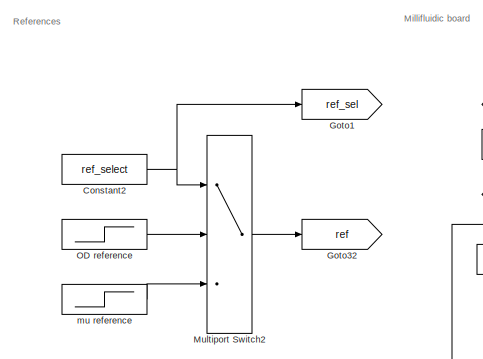
[diagram: root canvas - part 1/4, top left region]
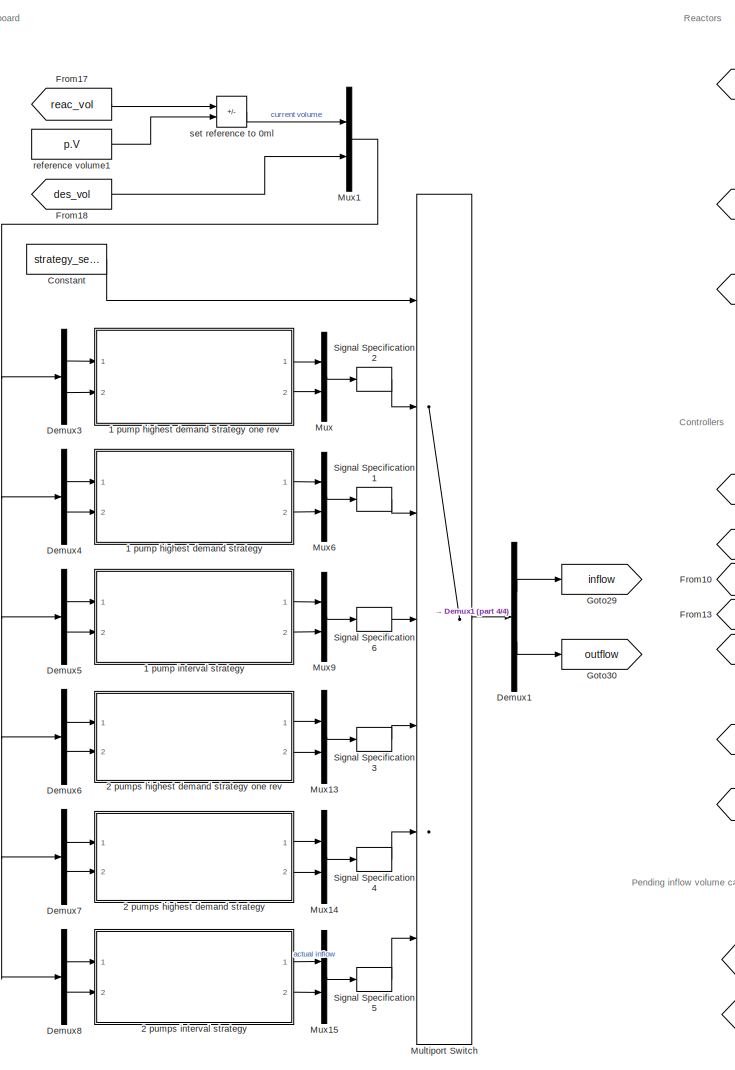
[diagram: root canvas - part 2/4, left side, full height]
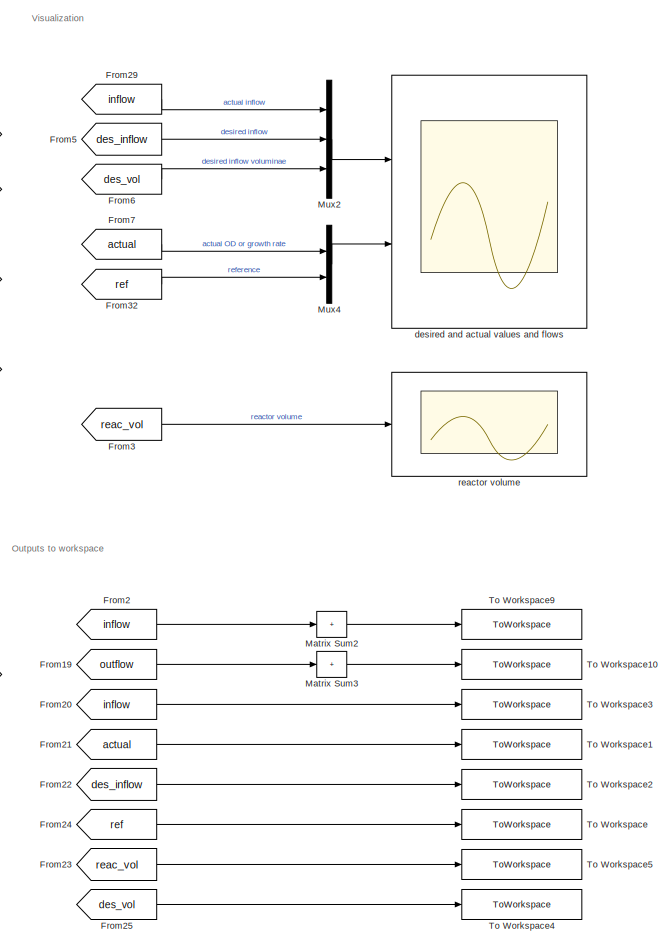
[diagram: root canvas - part 3/4, right side, full height]
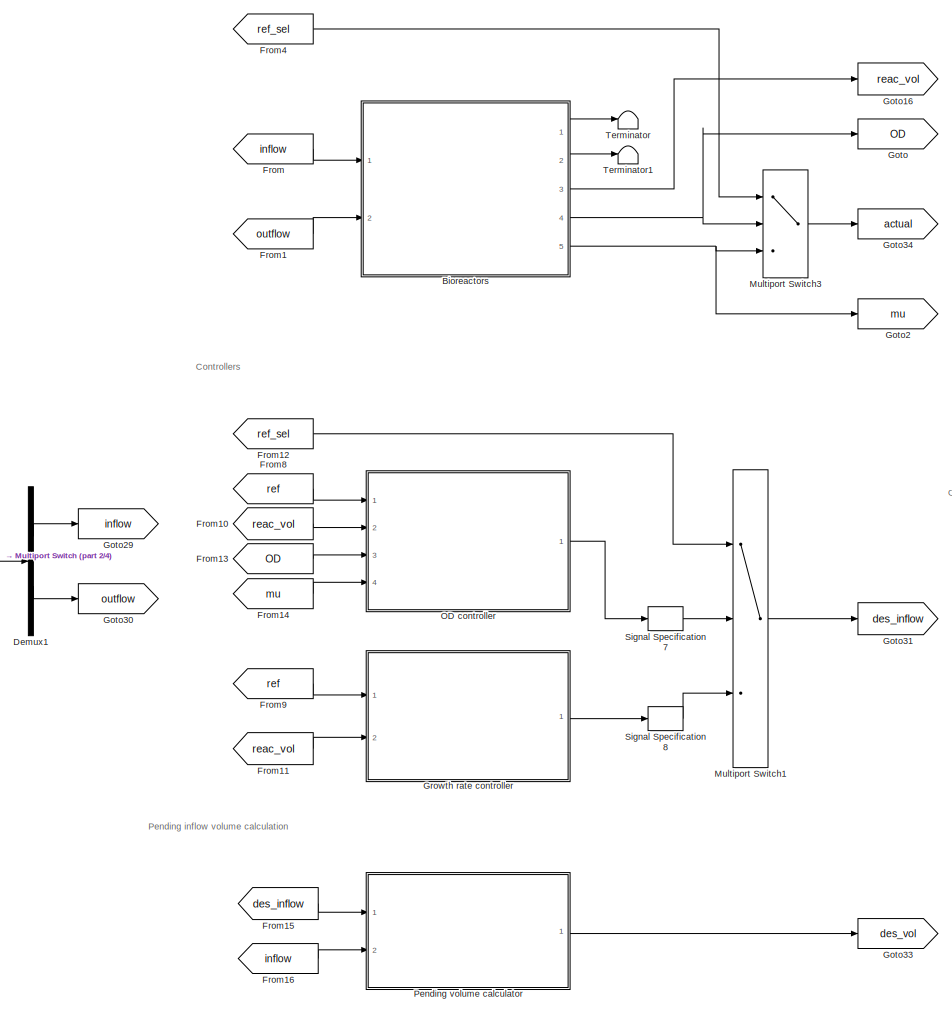
[diagram: root canvas - part 4/4, center side, full height]
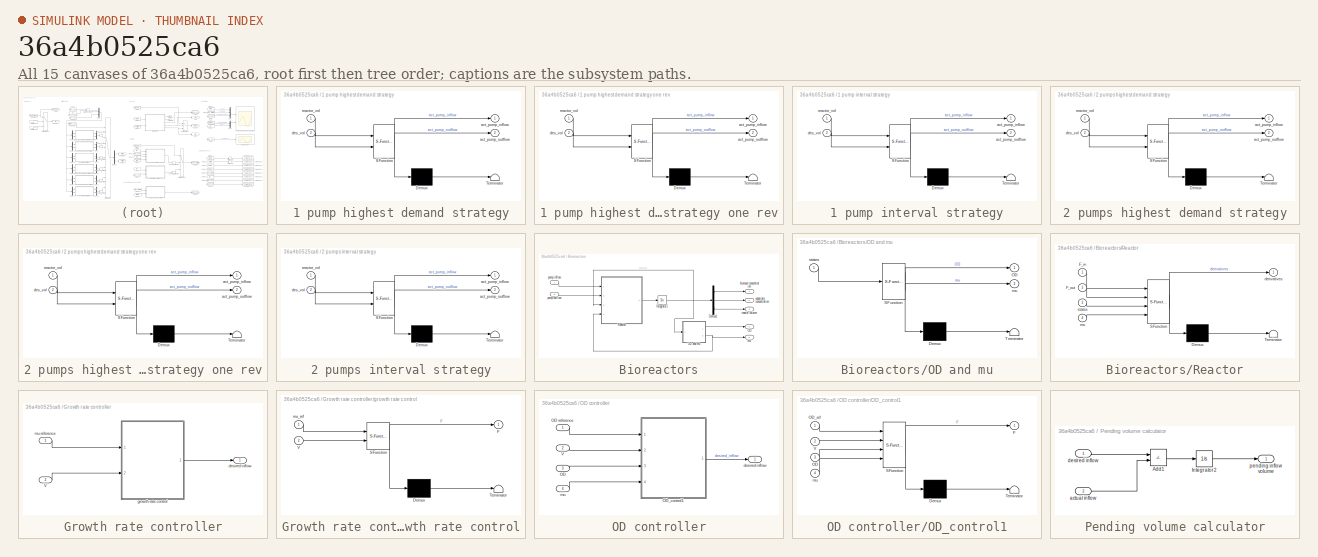
[diagram: thumbnail index - all 15 canvases of the model, root first then tree order]
MODEL slx_36a4b0525ca6
KIND model
CONFIG AbsTol = 1e-6
CONFIG EnableMultiTasking = off
CONFIG FixedStep = h
CONFIG MaxStep = 1
CONFIG MinStep = auto
CONFIG RelTol = 1e-3
CONFIG SampleTimeConstraint = Unconstrained
CONFIG SolverName = FixedStepAuto
CONFIG StartTime = 0.0
CONFIG StopTime = stoptime
BLOCK [SubSystem] 1 pump highest demand strategy
  ErrorFcn = Stateflow.Translate.translate
  PermitHierarchicalResolution = ExplicitOnly
  Ports = [2, 2]
  RequestExecContextInheritance = off
  SFBlockType = Chart
  TreatAsAtomicUnit = on
BLOCK [SubSystem] 1 pump highest demand strategy one rev
  ErrorFcn = Stateflow.Translate.translate
  PermitHierarchicalResolution = ExplicitOnly
  Ports = [2, 2]
  RequestExecContextInheritance = off
  SFBlockType = Chart
  TreatAsAtomicUnit = on
BLOCK [Demux] 1 pump highest demand strategy one rev/ Demux 
  Outputs = 1
  Ports = [1, 1]
BLOCK [S-Function] 1 pump highest demand strategy one rev/ SFunction 
  EnableBusSupport = on
  FunctionName = sf_sfun
  Parameters = p
  PortCounts = [2 3]
  Ports = [2, 3]
  SFcnIsStateOwnerBlock = off
  SFunctionDeploymentMode = off
  Tag = Stateflow S-Function 3
BLOCK [Terminator] 1 pump highest demand strategy one rev/ Terminator 
BLOCK [Outport] 1 pump highest demand strategy one rev/act_pump_inflow
BLOCK [Outport] 1 pump highest demand strategy one rev/act_pump_outflow
  Port = 2
BLOCK [Inport] 1 pump highest demand strategy one rev/des_vol
  Port = 2
BLOCK [Inport] 1 pump highest demand strategy one rev/reactor_vol
BLOCK [Demux] 1 pump highest demand strategy/ Demux 
  Outputs = 1
  Ports = [1, 1]
BLOCK [S-Function] 1 pump highest demand strategy/ SFunction 
  EnableBusSupport = on
  FunctionName = sf_sfun
  Parameters = p
  PortCounts = [2 3]
  Ports = [2, 3]
  SFcnIsStateOwnerBlock = off
  SFunctionDeploymentMode = off
  Tag = Stateflow S-Function 2
BLOCK [Terminator] 1 pump highest demand strategy/ Terminator 
BLOCK [Outport] 1 pump highest demand strategy/act_pump_inflow
BLOCK [Outport] 1 pump highest demand strategy/act_pump_outflow
  Port = 2
BLOCK [Inport] 1 pump highest demand strategy/des_vol
  Port = 2
BLOCK [Inport] 1 pump highest demand strategy/reactor_vol
BLOCK [SubSystem] 1 pump interval strategy
  ErrorFcn = Stateflow.Translate.translate
  PermitHierarchicalResolution = ExplicitOnly
  Ports = [2, 2]
  RequestExecContextInheritance = off
  SFBlockType = Chart
  TreatAsAtomicUnit = on
BLOCK [Demux] 1 pump interval strategy/ Demux 
  Outputs = 1
  Ports = [1, 1]
BLOCK [S-Function] 1 pump interval strategy/ SFunction 
  EnableBusSupport = on
  FunctionName = sf_sfun
  Parameters = p
  PortCounts = [2 3]
  Ports = [2, 3]
  SFcnIsStateOwnerBlock = off
  SFunctionDeploymentMode = off
  Tag = Stateflow S-Function 1
BLOCK [Terminator] 1 pump interval strategy/ Terminator 
BLOCK [Outport] 1 pump interval strategy/act_pump_inflow
BLOCK [Outport] 1 pump interval strategy/act_pump_outflow
  Port = 2
BLOCK [Inport] 1 pump interval strategy/des_vol
  Port = 2
BLOCK [Inport] 1 pump interval strategy/reactor_vol
BLOCK [SubSystem] 2 pumps highest demand strategy
  ErrorFcn = Stateflow.Translate.translate
  PermitHierarchicalResolution = ExplicitOnly
  Ports = [2, 2]
  RequestExecContextInheritance = off
  SFBlockType = Chart
  TreatAsAtomicUnit = on
BLOCK [SubSystem] 2 pumps highest demand strategy one rev
  ErrorFcn = Stateflow.Translate.translate
  PermitHierarchicalResolution = ExplicitOnly
  Ports = [2, 2]
  RequestExecContextInheritance = off
  SFBlockType = Chart
  TreatAsAtomicUnit = on
BLOCK [Demux] 2 pumps highest demand strategy one rev/ Demux 
  Outputs = 1
  Ports = [1, 1]
BLOCK [S-Function] 2 pumps highest demand strategy one rev/ SFunction 
  EnableBusSupport = on
  FunctionName = sf_sfun
  Parameters = p
  PortCounts = [2 3]
  Ports = [2, 3]
  SFcnIsStateOwnerBlock = off
  SFunctionDeploymentMode = off
  Tag = Stateflow S-Function 4
BLOCK [Terminator] 2 pumps highest demand strategy one rev/ Terminator 
BLOCK [Outport] 2 pumps highest demand strategy one rev/act_pump_inflow
BLOCK [Outport] 2 pumps highest demand strategy one rev/act_pump_outflow
  Port = 2
BLOCK [Inport] 2 pumps highest demand strategy one rev/des_vol
  Port = 2
BLOCK [Inport] 2 pumps highest demand strategy one rev/reactor_vol
BLOCK [Demux] 2 pumps highest demand strategy/ Demux 
  Outputs = 1
  Ports = [1, 1]
BLOCK [S-Function] 2 pumps highest demand strategy/ SFunction 
  EnableBusSupport = on
  FunctionName = sf_sfun
  Parameters = p
  PortCounts = [2 3]
  Ports = [2, 3]
  SFcnIsStateOwnerBlock = off
  SFunctionDeploymentMode = off
  Tag = Stateflow S-Function 5
BLOCK [Terminator] 2 pumps highest demand strategy/ Terminator 
BLOCK [Outport] 2 pumps highest demand strategy/act_pump_inflow
BLOCK [Outport] 2 pumps highest demand strategy/act_pump_outflow
  Port = 2
BLOCK [Inport] 2 pumps highest demand strategy/des_vol
  Port = 2
BLOCK [Inport] 2 pumps highest demand strategy/reactor_vol
BLOCK [SubSystem] 2 pumps interval strategy
  ErrorFcn = Stateflow.Translate.translate
  PermitHierarchicalResolution = ExplicitOnly
  Ports = [2, 2]
  RequestExecContextInheritance = off
  SFBlockType = Chart
  TreatAsAtomicUnit = on
BLOCK [Demux] 2 pumps interval strategy/ Demux 
  Outputs = 1
  Ports = [1, 1]
BLOCK [S-Function] 2 pumps interval strategy/ SFunction 
  EnableBusSupport = on
  FunctionName = sf_sfun
  Parameters = p
  PortCounts = [2 3]
  Ports = [2, 3]
  SFcnIsStateOwnerBlock = off
  SFunctionDeploymentMode = off
  Tag = Stateflow S-Function 6
BLOCK [Terminator] 2 pumps interval strategy/ Terminator 
BLOCK [Outport] 2 pumps interval strategy/act_pump_inflow
BLOCK [Outport] 2 pumps interval strategy/act_pump_outflow
  Port = 2
BLOCK [Inport] 2 pumps interval strategy/des_vol
  Port = 2
BLOCK [Inport] 2 pumps interval strategy/reactor_vol
BLOCK [SubSystem] Bioreactors
  Ports = [2, 5]
  RequestExecContextInheritance = off
BLOCK [Demux] Bioreactors/Demux1
  Outputs = 3
  Ports = [1, 3]
BLOCK [Integrator] Bioreactors/Integrator1
  InitialCondition = [p.init_x; p.init_s; p.init_v];
  Ports = [1, 1]
BLOCK [Outport] Bioreactors/OD
  Port = 4
BLOCK [SubSystem] Bioreactors/OD and mu
  ErrorFcn = Stateflow.Translate.translate
  PermitHierarchicalResolution = ExplicitOnly
  Ports = [1, 2]
  RequestExecContextInheritance = off
  SFBlockType = MATLAB Function
  TreatAsAtomicUnit = on
BLOCK [Demux] Bioreactors/OD and mu/ Demux 
  Outputs = 1
  Ports = [1, 1]
BLOCK [S-Function] Bioreactors/OD and mu/ SFunction 
  EnableBusSupport = on
  FunctionName = sf_sfun
  Parameters = p
  PortCounts = [1 3]
  Ports = [1, 3]
  SFcnIsStateOwnerBlock = off
  SFunctionDeploymentMode = off
  Tag = Stateflow S-Function 9
BLOCK [Terminator] Bioreactors/OD and mu/ Terminator 
BLOCK [Outport] Bioreactors/OD and mu/OD
BLOCK [Outport] Bioreactors/OD and mu/mu
  Port = 2
BLOCK [Inport] Bioreactors/OD and mu/states
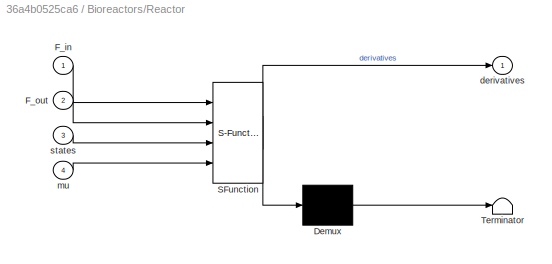
BLOCK [SubSystem] Bioreactors/Reactor
  ErrorFcn = Stateflow.Translate.translate
  PermitHierarchicalResolution = ExplicitOnly
  Ports = [4, 1]
  RequestExecContextInheritance = off
  SFBlockType = MATLAB Function
  TreatAsAtomicUnit = on
BLOCK [Demux] Bioreactors/Reactor/ Demux 
  Outputs = 1
  Ports = [1, 1]
BLOCK [S-Function] Bioreactors/Reactor/ SFunction 
  EnableBusSupport = on
  FunctionName = sf_sfun
  Parameters = p
  PortCounts = [4 2]
  Ports = [4, 2]
  SFcnIsStateOwnerBlock = off
  SFunctionDeploymentMode = off
  Tag = Stateflow S-Function 8
BLOCK [Terminator] Bioreactors/Reactor/ Terminator 
BLOCK [Inport] Bioreactors/Reactor/F_in
BLOCK [Inport] Bioreactors/Reactor/F_out
  Port = 2
BLOCK [Outport] Bioreactors/Reactor/derivatives
BLOCK [Inport] Bioreactors/Reactor/mu
  Port = 4
BLOCK [Inport] Bioreactors/Reactor/states
  Port = 3
BLOCK [Outport] Bioreactors/biomass concentration
BLOCK [Outport] Bioreactors/mu
  Port = 5
BLOCK [Inport] Bioreactors/pump inflow
BLOCK [Inport] Bioreactors/pump outflow
  Port = 2
BLOCK [Outport] Bioreactors/reactor volume
  Port = 3
BLOCK [Outport] Bioreactors/substrate concentration
  Port = 2
BLOCK [Constant] Constant
  Value = strategy_select
BLOCK [Constant] Constant2
  Value = ref_select
BLOCK [Demux] Demux1
  Outputs = 2
  Ports = [1, 2]
BLOCK [Demux] Demux3
  Outputs = 2
  Ports = [1, 2]
BLOCK [Demux] Demux4
  Outputs = 2
  Ports = [1, 2]
BLOCK [Demux] Demux5
  Outputs = 2
  Ports = [1, 2]
BLOCK [Demux] Demux6
  Outputs = 2
  Ports = [1, 2]
BLOCK [Demux] Demux7
  Outputs = 2
  Ports = [1, 2]
BLOCK [Demux] Demux8
  Outputs = 2
  Ports = [1, 2]
BLOCK [From] From
  GotoTag = inflow
BLOCK [From] From1
  GotoTag = outflow
BLOCK [From] From10
  GotoTag = reac_vol
BLOCK [From] From11
  GotoTag = reac_vol
BLOCK [From] From12
  GotoTag = ref_sel
BLOCK [From] From13
  GotoTag = OD
BLOCK [From] From14
  GotoTag = mu
BLOCK [From] From15
  GotoTag = des_inflow
BLOCK [From] From16
  GotoTag = inflow
BLOCK [From] From17
  GotoTag = reac_vol
BLOCK [From] From18
  GotoTag = des_vol
BLOCK [From] From19
  GotoTag = outflow
BLOCK [From] From2
  GotoTag = inflow
BLOCK [From] From20
  GotoTag = inflow
BLOCK [From] From21
  GotoTag = actual
BLOCK [From] From22
  GotoTag = des_inflow
BLOCK [From] From23
  GotoTag = reac_vol
BLOCK [From] From24
  GotoTag = ref
BLOCK [From] From25
  GotoTag = des_vol
BLOCK [From] From29
  GotoTag = inflow
BLOCK [From] From3
  GotoTag = reac_vol
BLOCK [From] From32
  GotoTag = ref
BLOCK [From] From4
  GotoTag = ref_sel
BLOCK [From] From5
  GotoTag = des_inflow
BLOCK [From] From6
  GotoTag = des_vol
BLOCK [From] From7
  GotoTag = actual
BLOCK [From] From8
  GotoTag = ref
BLOCK [From] From9
  GotoTag = ref
BLOCK [Goto] Goto
  GotoTag = OD
BLOCK [Goto] Goto1
  GotoTag = ref_sel
BLOCK [Goto] Goto16
  GotoTag = reac_vol
BLOCK [Goto] Goto2
  GotoTag = mu
BLOCK [Goto] Goto29
  GotoTag = inflow
BLOCK [Goto] Goto30
  GotoTag = outflow
BLOCK [Goto] Goto31
  GotoTag = des_inflow
BLOCK [Goto] Goto32
  GotoTag = ref
BLOCK [Goto] Goto33
  GotoTag = des_vol
BLOCK [Goto] Goto34
  GotoTag = actual
BLOCK [SubSystem] Growth rate controller
  Ports = [2, 1]
  RequestExecContextInheritance = off
BLOCK [Inport] Growth rate controller/V
  Port = 2
BLOCK [Outport] Growth rate controller/desired inflow
BLOCK [SubSystem] Growth rate controller/growth rate control
  ErrorFcn = Stateflow.Translate.translate
  PermitHierarchicalResolution = ExplicitOnly
  Ports = [2, 1]
  RequestExecContextInheritance = off
  SFBlockType = MATLAB Function
  TreatAsAtomicUnit = on
BLOCK [Demux] Growth rate controller/growth rate control/ Demux 
  Outputs = 1
  Ports = [1, 1]
BLOCK [S-Function] Growth rate controller/growth rate control/ SFunction 
  EnableBusSupport = on
  FunctionName = sf_sfun
  PortCounts = [2 2]
  Ports = [2, 2]
  SFcnIsStateOwnerBlock = off
  SFunctionDeploymentMode = off
  Tag = Stateflow S-Function 10
BLOCK [Terminator] Growth rate controller/growth rate control/ Terminator 
BLOCK [Outport] Growth rate controller/growth rate control/F
BLOCK [Inport] Growth rate controller/growth rate control/V
  Port = 2
BLOCK [Inport] Growth rate controller/growth rate control/mu_ref
BLOCK [Inport] Growth rate controller/mu reference
BLOCK [Sum] Matrix Sum2
  IconShape = rectangular
  Inputs = +
  Ports = [1, 1]
BLOCK [Sum] Matrix Sum3
  IconShape = rectangular
  Inputs = +
  Ports = [1, 1]
BLOCK [MultiPortSwitch] Multiport Switch
  InputSameDT = off
  Inputs = 6
  Ports = [7, 1]
  SaturateOnIntegerOverflow = off
BLOCK [MultiPortSwitch] Multiport Switch1
  InputSameDT = off
  Inputs = 2
  Ports = [3, 1]
  SaturateOnIntegerOverflow = off
BLOCK [MultiPortSwitch] Multiport Switch2
  InputSameDT = off
  Inputs = 2
  Ports = [3, 1]
  SaturateOnIntegerOverflow = off
BLOCK [MultiPortSwitch] Multiport Switch3
  InputSameDT = off
  Inputs = 2
  Ports = [3, 1]
  SaturateOnIntegerOverflow = off
BLOCK [Mux] Mux
  DisplayOption = bar
  Inputs = 2
  Ports = [2, 1]
BLOCK [Mux] Mux1
  DisplayOption = bar
  Inputs = 2
  Ports = [2, 1]
BLOCK [Mux] Mux13
  DisplayOption = bar
  Inputs = 2
  Ports = [2, 1]
BLOCK [Mux] Mux14
  DisplayOption = bar
  Inputs = 2
  Ports = [2, 1]
BLOCK [Mux] Mux15
  DisplayOption = bar
  Inputs = 2
  Ports = [2, 1]
BLOCK [Mux] Mux2
  DisplayOption = bar
  Inputs = 3
  Ports = [3, 1]
BLOCK [Mux] Mux4
  DisplayOption = bar
  Inputs = 2
  Ports = [2, 1]
BLOCK [Mux] Mux6
  DisplayOption = bar
  Inputs = 2
  Ports = [2, 1]
BLOCK [Mux] Mux9
  DisplayOption = bar
  Inputs = 2
  Ports = [2, 1]
BLOCK [SubSystem] OD controller
  Ports = [4, 1]
  RequestExecContextInheritance = off
BLOCK [Inport] OD controller/OD
  Port = 3
BLOCK [Inport] OD controller/OD reference
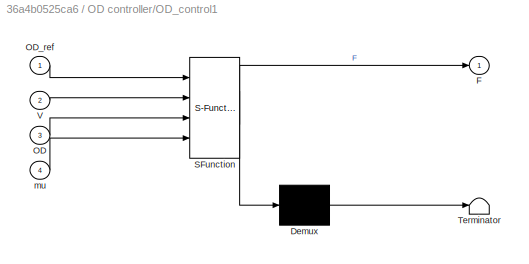
BLOCK [SubSystem] OD controller/OD_control1
  ErrorFcn = Stateflow.Translate.translate
  PermitHierarchicalResolution = ExplicitOnly
  Ports = [4, 1]
  RequestExecContextInheritance = off
  SFBlockType = MATLAB Function
  TreatAsAtomicUnit = on
BLOCK [Demux] OD controller/OD_control1/ Demux 
  Outputs = 1
  Ports = [1, 1]
BLOCK [S-Function] OD controller/OD_control1/ SFunction 
  EnableBusSupport = on
  FunctionName = sf_sfun
  PortCounts = [4 2]
  Ports = [4, 2]
  SFcnIsStateOwnerBlock = off
  SFunctionDeploymentMode = off
  Tag = Stateflow S-Function 7
BLOCK [Terminator] OD controller/OD_control1/ Terminator 
BLOCK [Outport] OD controller/OD_control1/F
BLOCK [Inport] OD controller/OD_control1/OD
  Port = 3
BLOCK [Inport] OD controller/OD_control1/OD_ref
BLOCK [Inport] OD controller/OD_control1/V
  Port = 2
BLOCK [Inport] OD controller/OD_control1/mu
  Port = 4
BLOCK [Inport] OD controller/V
  Port = 2
BLOCK [Outport] OD controller/desired inflow
BLOCK [Inport] OD controller/mu
  Port = 4
BLOCK [Step] OD reference
  After = p.OD.final_val
  Before = p.OD.init_val
  SampleTime = 0
  Time = p.OD.step_time
BLOCK [SubSystem] Pending volume calculator
  Ports = [2, 1]
  RequestExecContextInheritance = off
BLOCK [Sum] Pending volume calculator/Add1
  IconShape = rectangular
  Inputs = +-
  Ports = [2, 1]
BLOCK [Integrator] Pending volume calculator/Integrator2
  InitialCondition = zeros(p.num_reac,1)
  Ports = [1, 1]
BLOCK [Inport] Pending volume calculator/actual inflow
  Port = 2
BLOCK [Inport] Pending volume calculator/desired inflow
BLOCK [Outport] Pending volume calculator/pending inflow volume
BLOCK [SignalSpecification] Signal Specification1
  Dimensions = 2*p.num_reac
BLOCK [SignalSpecification] Signal Specification2
  Dimensions = 2*p.num_reac
BLOCK [SignalSpecification] Signal Specification3
  Dimensions = 2*p.num_reac
BLOCK [SignalSpecification] Signal Specification4
  Dimensions = 2*p.num_reac
BLOCK [SignalSpecification] Signal Specification5
  Dimensions = 2*p.num_reac
BLOCK [SignalSpecification] Signal Specification6
  Dimensions = 2*p.num_reac
BLOCK [SignalSpecification] Signal Specification7
  Dimensions = p.num_reac
BLOCK [SignalSpecification] Signal Specification8
  Dimensions = p.num_reac
BLOCK [Terminator] Terminator
BLOCK [Terminator] Terminator1
BLOCK [ToWorkspace] To Workspace
  FixptAsFi = on
  MaxDataPoints = inf
  Ports = [1]
  SampleTime = -1
  VariableName = reference
BLOCK [ToWorkspace] To Workspace1
  FixptAsFi = on
  MaxDataPoints = inf
  Ports = [1]
  SampleTime = -1
  VariableName = actual
BLOCK [ToWorkspace] To Workspace10
  FixptAsFi = on
  MaxDataPoints = inf
  Ports = [1]
  SampleTime = -1
  Save2DSignal = 2-D array (concatenate along first dimension)
  VariableName = pump_outflow
BLOCK [ToWorkspace] To Workspace2
  FixptAsFi = on
  MaxDataPoints = inf
  Ports = [1]
  SampleTime = -1
  VariableName = desired_flow
BLOCK [ToWorkspace] To Workspace3
  FixptAsFi = on
  MaxDataPoints = inf
  Ports = [1]
  SampleTime = -1
  Save2DSignal = 2-D array (concatenate along first dimension)
  VariableName = actual_inflow
BLOCK [ToWorkspace] To Workspace4
  FixptAsFi = on
  MaxDataPoints = inf
  Ports = [1]
  SampleTime = -1
  VariableName = des_vol
BLOCK [ToWorkspace] To Workspace5
  FixptAsFi = on
  MaxDataPoints = inf
  Ports = [1]
  SampleTime = -1
  VariableName = reac_vol
BLOCK [ToWorkspace] To Workspace9
  FixptAsFi = on
  MaxDataPoints = inf
  Ports = [1]
  SampleTime = -1
  Save2DSignal = 2-D array (concatenate along first dimension)
  VariableName = pump_inflow
BLOCK [Scope] desired and actual values and flows
  Floating = off
  NumInputPorts = 2
  Ports = [2]
  ScopeSpecificationString = Simulink.scopes.TimeScopeBlockCfg('CurrentConfiguration', extmgr.ConfigurationSet(extmgr.Configuration('Core','General UI',true),extmgr.Configuration('Core','Source UI',true),extmgr.Configuration('Sources','WiredSimulink',true,'DataLoggingVariableName','ScopeData1'),extmgr.Configuration('Visuals','Time Domain',true,'SerializedDisplays',{struct('MinYLimReal','-4.5','MaxYLimReal','40.5','YLabelReal'...<+2594ch>
BLOCK [Step] mu reference
  After = p.growth_rate.final_val
  Before = p.growth_rate.init_val
  SampleTime = 0
  Time = p.growth_rate.step_time
BLOCK [Scope] reactor volume
  Floating = off
  NumInputPorts = 1
  Ports = [1]
  ScopeSpecificationString = Simulink.scopes.TimeScopeBlockCfg('CurrentConfiguration', extmgr.ConfigurationSet(extmgr.Configuration('Core','General UI',true),extmgr.Configuration('Core','Source UI',true),extmgr.Configuration('Sources','WiredSimulink',true),extmgr.Configuration('Visuals','Time Domain',true,'SerializedDisplays',{struct('MinYLimReal','14.61345','MaxYLimReal','18.44295','YLabelReal','','MinYLimMag','14.61345','Ma...<+1512ch>
BLOCK [Constant] reference volume1
  Value = p.V
BLOCK [Sum] set reference to 0ml
  IconShape = rectangular
  Inputs = +-
  Ports = [2, 1]
ANNOTATION (root): Controllers
ANNOTATION (root): Millifluidic board
ANNOTATION (root): Outputs to workspace
ANNOTATION (root): Pending inflow volume calculation
ANNOTATION (root): Reactors
ANNOTATION (root): References
ANNOTATION (root): Visualization
LINE 1 pump highest demand strategy one rev:1 -> Mux:1
LINE 1 pump highest demand strategy one rev:2 -> Mux:2
LINE 1 pump highest demand strategy:1 -> Mux6:1
LINE 1 pump highest demand strategy:2 -> Mux6:2
LINE 1 pump interval strategy:1 -> Mux9:1
LINE 1 pump interval strategy:2 -> Mux9:2
LINE 2 pumps highest demand strategy one rev:1 -> Mux13:1
LINE 2 pumps highest demand strategy one rev:2 -> Mux13:2
LINE 2 pumps highest demand strategy:1 -> Mux14:1
LINE 2 pumps highest demand strategy:2 -> Mux14:2
LINE 2 pumps interval strategy:1 -> Mux15:1
LINE 2 pumps interval strategy:2 -> Mux15:2
LINE Bioreactors/Demux1:1 -> Bioreactors/biomass concentration:1
LINE Bioreactors/Demux1:2 -> Bioreactors/substrate concentration:1
LINE Bioreactors/Demux1:3 -> Bioreactors/reactor volume:1
NET Bioreactors/Integrator1:1 -> Bioreactors/Demux1:1, Bioreactors/OD and mu:1, Bioreactors/Reactor:3
LINE Bioreactors/OD and mu:1 -> Bioreactors/OD:1
NET Bioreactors/OD and mu:2 -> Bioreactors/Reactor:4, Bioreactors/mu:1
LINE Bioreactors/Reactor:1 -> Bioreactors/Integrator1:1
LINE Bioreactors/pump inflow:1 -> Bioreactors/Reactor:1
LINE Bioreactors/pump outflow:1 -> Bioreactors/Reactor:2
LINE Bioreactors:1 -> Terminator:1
LINE Bioreactors:2 -> Terminator1:1
LINE Bioreactors:3 -> Goto16:1
NET Bioreactors:4 -> Goto:1, Multiport Switch3:2
NET Bioreactors:5 -> Goto2:1, Multiport Switch3:3
NET Constant2:1 -> Goto1:1, Multiport Switch2:1
LINE Constant:1 -> Multiport Switch:1
LINE Demux1:1 -> Goto29:1
LINE Demux1:2 -> Goto30:1
LINE Demux3:1 -> 1 pump highest demand strategy one rev:1
LINE Demux3:2 -> 1 pump highest demand strategy one rev:2
LINE Demux4:1 -> 1 pump highest demand strategy:1
LINE Demux4:2 -> 1 pump highest demand strategy:2
LINE Demux5:1 -> 1 pump interval strategy:1
LINE Demux5:2 -> 1 pump interval strategy:2
LINE Demux6:1 -> 2 pumps highest demand strategy one rev:1
LINE Demux6:2 -> 2 pumps highest demand strategy one rev:2
LINE Demux7:1 -> 2 pumps highest demand strategy:1
LINE Demux7:2 -> 2 pumps highest demand strategy:2
LINE Demux8:1 -> 2 pumps interval strategy:1
LINE Demux8:2 -> 2 pumps interval strategy:2
LINE From10:1 -> OD controller:2
LINE From11:1 -> Growth rate controller:2
LINE From12:1 -> Multiport Switch1:1
LINE From13:1 -> OD controller:3
LINE From14:1 -> OD controller:4
LINE From15:1 -> Pending volume calculator:1
LINE From16:1 -> Pending volume calculator:2
LINE From17:1 -> set reference to 0ml:1
LINE From18:1 -> Mux1:2
LINE From19:1 -> Matrix Sum3:1
LINE From1:1 -> Bioreactors:2
LINE From20:1 -> To Workspace3:1
LINE From21:1 -> To Workspace1:1
LINE From22:1 -> To Workspace2:1
LINE From23:1 -> To Workspace5:1
LINE From24:1 -> To Workspace:1
LINE From25:1 -> To Workspace4:1
LINE From29:1 -> Mux2:1
LINE From2:1 -> Matrix Sum2:1
LINE From32:1 -> Mux4:2
LINE From3:1 -> reactor volume:1
LINE From4:1 -> Multiport Switch3:1
LINE From5:1 -> Mux2:2
LINE From6:1 -> Mux2:3
LINE From7:1 -> Mux4:1
LINE From8:1 -> OD controller:1
LINE From9:1 -> Growth rate controller:1
LINE From:1 -> Bioreactors:1
LINE Growth rate controller/V:1 -> Growth rate controller/growth rate control:2
LINE Growth rate controller/growth rate control:1 -> Growth rate controller/desired inflow:1
LINE Growth rate controller/mu reference:1 -> Growth rate controller/growth rate control:1
LINE Growth rate controller:1 -> Signal Specification8:1
LINE Matrix Sum2:1 -> To Workspace9:1
LINE Matrix Sum3:1 -> To Workspace10:1
LINE Multiport Switch1:1 -> Goto31:1
LINE Multiport Switch2:1 -> Goto32:1
LINE Multiport Switch3:1 -> Goto34:1
LINE Multiport Switch:1 -> Demux1:1
LINE Mux13:1 -> Signal Specification3:1
LINE Mux14:1 -> Signal Specification4:1
LINE Mux15:1 -> Signal Specification5:1
NET Mux1:1 -> Demux3:1, Demux4:1, Demux5:1, Demux6:1, Demux7:1, Demux8:1
LINE Mux2:1 -> desired and actual values and flows:1
LINE Mux4:1 -> desired and actual values and flows:2
LINE Mux6:1 -> Signal Specification1:1
LINE Mux9:1 -> Signal Specification6:1
LINE Mux:1 -> Signal Specification2:1
LINE OD controller/OD reference:1 -> OD controller/OD_control1:1
LINE OD controller/OD:1 -> OD controller/OD_control1:3
LINE OD controller/OD_control1:1 -> OD controller/desired inflow:1
LINE OD controller/V:1 -> OD controller/OD_control1:2
LINE OD controller/mu:1 -> OD controller/OD_control1:4
LINE OD controller:1 -> Signal Specification7:1
LINE OD reference:1 -> Multiport Switch2:2
LINE Pending volume calculator/Add1:1 -> Pending volume calculator/Integrator2:1
LINE Pending volume calculator/Integrator2:1 -> Pending volume calculator/pending inflow volume:1
LINE Pending volume calculator/actual inflow:1 -> Pending volume calculator/Add1:2
LINE Pending volume calculator/desired inflow:1 -> Pending volume calculator/Add1:1
LINE Pending volume calculator:1 -> Goto33:1
LINE Signal Specification1:1 -> Multiport Switch:3
LINE Signal Specification2:1 -> Multiport Switch:2
LINE Signal Specification3:1 -> Multiport Switch:5
LINE Signal Specification4:1 -> Multiport Switch:6
LINE Signal Specification5:1 -> Multiport Switch:7
LINE Signal Specification6:1 -> Multiport Switch:4
LINE Signal Specification7:1 -> Multiport Switch1:2
LINE Signal Specification8:1 -> Multiport Switch1:3
LINE mu reference:1 -> Multiport Switch2:3
LINE reference volume1:1 -> set reference to 0ml:2
LINE set reference to 0ml:1 -> Mux1:1
note: NET lines group one-source signal fan-out (src -> all destinations, sorted); 1:1 wires keep LINE
CHART 1 pump interval strategy states=18 transitions=27
  STATE_LABEL 'procedures'
  STATE_LABEL 'normal'
  STATE_LABEL 'sampling\nentry: sampling_req=true;'
  STATE_LABEL 'after(p.sampling_int, sec)'
  STATE_LABEL 'sampling_done'
  STATE_LABEL 'normal'
  STATE_LABEL 'sampling\nentry: sampling_req=true;'
  STATE_LABEL 'counter'
  STATE_LABEL 'init_counter\nentry: reac_ind = 1;'
  STATE_LABEL 'increase_counter\nentry: reac_ind = reac_ind+1;'
  STATE_LABEL 'cycle_over'
  STATE_LABEL '% loop_counter'
  STATE_LABEL 'after(p.interval/p.num_reac,sec)'
  STATE_LABEL '[reac_ind<p.num_reac]'
  STATE_LABEL 'after(p.interval/p.num_reac,sec)'
  STATE_LABEL 'next_cycle'
  STATE_LABEL 'init_counter\nentry: reac_ind = 1;'
  STATE_LABEL 'increase_counter\nentry: reac_ind = reac_ind+1;'
  STATE_LABEL 'cycle_over'
  STATE_LABEL 'feeding_wasting_sampling'
  STATE_LABEL 'inflow'
  STATE_LABEL 'inflow_act\nentry: vol_pump_in=floor(des_vol(reac_ind)/...\n     p.pump_res)*p.pump_res;\n act_pump_inflow(reac_ind)=p.max_pump_flow;'
  STATE_LABEL 'inflow_inact\nentry: act_pump_inflow(:)=0;'
  STATE_LABEL '[vol_pump_in<=0]'
  STATE_LABEL 'after(vol_pump_in/p.max_pump_flow,sec)'
  STATE_LABEL 'enter(counter.increase_counter)'
  STATE_LABEL 'after(p.interval/p.num_reac-1e-3,sec)'
  STATE_LABEL 'outflow_waste'
  STATE_LABEL 'outflow_act\nentry: vol_pump_out=reactor_vol(reac_ind);\n act_pump_outflow(reac_ind)=p.max_pump_flow;'
  STATE_LABEL 'outflow_inact\nentry: act_pump_outflow(:)=0;'
  STATE_LABEL '[vol_pump_out<=0]'
  STATE_LABEL 'after(vol_pump_out/p.max_pump_flow,sec)'
  STATE_LABEL 'enter(counter.increase_counter)'
  STATE_LABEL 'after(p.interval/p.num_reac-1e-3,sec)'
  STATE_LABEL 'cleaning_procedure'
  STATE_LABEL 'outflow_sampling'
  STATE_LABEL 'outflow_act\nentry: vol_pump_out=p.pump_res;\n act_pump_outflow(reac_ind)=p.max_pump_flow;'
  STATE_LABEL 'outflow_inact\nentry: act_pump_outflow(:)=0;'
  STATE_LABEL 'after(vol_pump_out/p.max_pump_flow,sec)'
  STATE_LABEL 'enter(counter.increase_counter)'
CHART 1 pump highest demand strategy states=15 transitions=18
  STATE_LABEL 'procedures'
  STATE_LABEL 'normal'
  STATE_LABEL 'sampling\nentry: sampling_req=true;'
  STATE_LABEL 'after(p.sampling_int, sec)'
  STATE_LABEL 'sampling_done'
  STATE_LABEL 'normal'
  STATE_LABEL 'sampling\nentry: sampling_req=true;'
  STATE_LABEL 'feeding_wasting_sampling'
  STATE_LABEL 'feeding'
  STATE_LABEL 'inflow'
  STATE_LABEL 'inflow_act\nentry: act_pump_inflow(reac_ind)=p.max_pump_flow;\n vol_pump_in = floor(vol_pump_in/p.pump_res)*p.pump_res;'
  STATE_LABEL 'inflow_inact\nentry: act_pump_inflow(:)=0;\n [vol_pump_in, reac_ind] = max(des_vol);\nduring: [vol_pump_in, reac_ind] = max(des_vol);'
  STATE_LABEL 'after(vol_pump_in/p.max_pump_flow,sec)'
  STATE_LABEL '[vol_pump_in<=0]'
  STATE_LABEL '[vol_pump_in>=p.pump_res]'
  STATE_LABEL 'outflow_waste'
  STATE_LABEL 'outflow_act\nentry: act_pump_outflow(reac_ind)=...\n     p.max_pump_flow;\n vol_pump_out = reactor_vol(reac_ind);\n % vol_pump_out = floor(reactor_vol(reac_ind)/...\n % p.pump_res)*p.pump_res;'
  STATE_LABEL 'outflow_inact\nentry: act_pump_outflow(:)=0;\n'
  STATE_LABEL '[vol_pump_out<=0]'
  STATE_LABEL 'after(vol_pump_out/p.max_pump_flow,sec)'
  STATE_LABEL '{reac_ind = reac_ind+1;}'
  STATE_LABEL 'cleaning_procedure'
  STATE_LABEL 'outflow_sampling'
  STATE_LABEL 'outflow_act\nentry: vol_pump_out=p.pump_res;\n act_pump_outflow(reac_ind)=p.max_pump_flow;'
  STATE_LABEL 'outflow_inact\nentry: act_pump_outflow(:)=0;'
  STATE_LABEL 'after(vol_pump_out/p.max_pump_flow,sec)'
  STATE_LABEL '{reac_ind=reac_ind+1;}'
  STATE_LABEL '[in(procedures.normal)]'
  STATE_LABEL '[sum(reactor_vol>p.waste_threshold)>0]{reac_ind=1;}'
  STATE_LABEL 'after(p.clean_time,sec)'
  STATE_LABEL '[in(procedures.sampling)]{reac_ind=1;}'
  STATE_LABEL '[reac_ind==p.num_reac]{send(sampling_done,procedures)}'
  STATE_LABEL '[reac_ind == p.num_reac]'
  STATE_LABEL 'feeding'
  STATE_LABEL 'inflow'
  STATE_LABEL 'inflow_act\nentry: act_pump_inflow(reac_ind)=p.max_pump_flow;\n vol_pump_in = floor(vol_pump_in/p.pump_res)*p.pump_res;'
  STATE_LABEL 'inflow_inact\nentry: act_pump_inflow(:)=0;\n [vol_pump_in, reac_ind] = max(des_vol);\nduring: [vol_pump_in, reac_ind] = max(des_vol);'
  STATE_LABEL 'after(vol_pump_in/p.max_pump_flow,sec)'
  STATE_LABEL '[vol_pump_in<=0]'
  STATE_LABEL '[vol_pump_in>=p.pump_res]'
CHART 1 pump highest demand strategy one rev states=15 transitions=18
  STATE_LABEL 'procedures'
  STATE_LABEL 'normal'
  STATE_LABEL 'sampling\nentry: sampling_req=true;'
  STATE_LABEL 'after(p.sampling_int, sec)'
  STATE_LABEL 'sampling_done'
  STATE_LABEL 'normal'
  STATE_LABEL 'sampling\nentry: sampling_req=true;'
  STATE_LABEL 'feeding_wasting_sampling'
  STATE_LABEL 'feeding'
  STATE_LABEL 'inflow'
  STATE_LABEL 'inflow_act\nentry: act_pump_inflow(reac_ind)=p.max_pump_flow;'
  STATE_LABEL 'inflow_inact\nentry: act_pump_inflow(:)=0;\n [vol_pump_in, reac_ind] = max(des_vol);\nduring: [vol_pump_in, reac_ind] = max(des_vol);'
  STATE_LABEL 'after(p.pump_res/p.max_pump_flow,sec)'
  STATE_LABEL '[vol_pump_in<=0]'
  STATE_LABEL '[vol_pump_in>=p.pump_res]'
  STATE_LABEL 'outflow_waste'
  STATE_LABEL 'outflow_act\nentry: act_pump_outflow(reac_ind)=...\n     p.max_pump_flow;\n vol_pump_out = reactor_vol(reac_ind);\n % vol_pump_out = floor(reactor_vol(reac_ind)/...\n % p.pump_res)*p.pump_res;'
  STATE_LABEL 'outflow_inact\nentry: act_pump_outflow(:)=0;\n'
  STATE_LABEL '[vol_pump_out<=0]'
  STATE_LABEL 'after(vol_pump_out/p.max_pump_flow,sec)'
  STATE_LABEL '{reac_ind = reac_ind+1;}'
  STATE_LABEL 'cleaning_procedure'
  STATE_LABEL 'outflow_sampling'
  STATE_LABEL 'outflow_act\nentry: vol_pump_out=p.pump_res;\n act_pump_outflow(reac_ind)=p.max_pump_flow;'
  STATE_LABEL 'outflow_inact\nentry: act_pump_outflow(:)=0;'
  STATE_LABEL 'after(vol_pump_out/p.max_pump_flow,sec)'
  STATE_LABEL '{reac_ind=reac_ind+1;}'
  STATE_LABEL '[in(procedures.normal)]'
  STATE_LABEL '[sum(reactor_vol>p.waste_threshold)>0]{reac_ind=1;}'
  STATE_LABEL 'after(p.clean_time,sec)'
  STATE_LABEL '[in(procedures.sampling)]{reac_ind=1;}'
  STATE_LABEL '[reac_ind==p.num_reac]{send(sampling_done,procedures)}'
  STATE_LABEL '[reac_ind == p.num_reac]'
  STATE_LABEL 'feeding'
  STATE_LABEL 'inflow'
  STATE_LABEL 'inflow_act\nentry: act_pump_inflow(reac_ind)=p.max_pump_flow;'
  STATE_LABEL 'inflow_inact\nentry: act_pump_inflow(:)=0;\n [vol_pump_in, reac_ind] = max(des_vol);\nduring: [vol_pump_in, reac_ind] = max(des_vol);'
  STATE_LABEL 'after(p.pump_res/p.max_pump_flow,sec)'
  STATE_LABEL '[vol_pump_in<=0]'
  STATE_LABEL '[vol_pump_in>=p.pump_res]'
CHART 2 pumps highest demand strategy one rev states=15 transitions=17
  STATE_LABEL 'procedures'
  STATE_LABEL 'normal'
  STATE_LABEL 'sampling\nentry: sampling_req=true;'
  STATE_LABEL 'after(p.sampling_int, sec)'
  STATE_LABEL 'sampling_done'
  STATE_LABEL 'normal'
  STATE_LABEL 'sampling\nentry: sampling_req=true;'
  STATE_LABEL 'feeding'
  STATE_LABEL 'inflow'
  STATE_LABEL 'inflow_act\nentry: act_pump_inflow(reac_ind_inflow)=...\n     p.max_pump_flow;'
  STATE_LABEL 'inflow_inact\nentry: act_pump_inflow(:)=0;\n [vol_pump_in, reac_ind_inflow] = max(des_vol);\nduring: [vol_pump_in, reac_ind_inflow] = max(des_vol);'
  STATE_LABEL 'after(p.pump_res/p.max_pump_flow,sec)'
  STATE_LABEL '[vol_pump_in<=0]'
  STATE_LABEL '[vol_pump_in>=p.pump_res]'
  STATE_LABEL 'inflow'
  STATE_LABEL 'inflow_act\nentry: act_pump_inflow(reac_ind_inflow)=...\n     p.max_pump_flow;'
  STATE_LABEL 'inflow_inact\nentry: act_pump_inflow(:)=0;\n [vol_pump_in, reac_ind_inflow] = max(des_vol);\nduring: [vol_pump_in, reac_ind_inflow] = max(des_vol);'
  STATE_LABEL 'after(p.pump_res/p.max_pump_flow,sec)'
  STATE_LABEL '[vol_pump_in<=0]'
  STATE_LABEL '[vol_pump_in>=p.pump_res]'
  STATE_LABEL 'inflow_act\nentry: act_pump_inflow(reac_ind_inflow)=...\n     p.max_pump_flow;'
  STATE_LABEL 'inflow_inact\nentry: act_pump_inflow(:)=0;\n [vol_pump_in, reac_ind_inflow] = max(des_vol);\nduring: [vol_pump_in, reac_ind_inflow] = max(des_vol);'
  STATE_LABEL 'wasting_sampling'
  STATE_LABEL 'outflow_waste'
  STATE_LABEL 'outflow_act\nentry: act_pump_outflow(reac_ind_outflow)=...\n     p.max_pump_flow;'
  STATE_LABEL 'outflow_inact\nentry: act_pump_outflow(:)=0;\n [vol_pump_out, reac_ind_outflow] = max(reactor_vol);\nduring: [vol_pump_out, reac_ind_outflow] = ...\n     max(reactor_vol);'
  STATE_LABEL '[vol_pump_out<=0]'
  STATE_LABEL 'after(vol_pump_out/p.max_pump_flow,sec)'
  STATE_LABEL '[vol_pump_out>=p.pump_res]'
  STATE_LABEL 'cleaning_procedure'
  STATE_LABEL 'outflow_sampling'
  STATE_LABEL 'outflow_act\nentry: vol_pump_out=p.pump_res;\n act_pump_outflow(reac_ind_outflow)=p.max_pump_flow;'
  STATE_LABEL 'outflow_inact\nentry: act_pump_outflow(:)=0;'
  STATE_LABEL 'after(vol_pump_out/p.max_pump_flow,sec)'
  STATE_LABEL '{reac_ind_outflow=reac_ind_outflow+1;}'
  STATE_LABEL '[in(procedures.sampling)]'
  STATE_LABEL '[reac_ind_outflow==p.num_reac]{send(sampling_done,procedures)}'
  STATE_LABEL 'after(p.clean_time,sec)'
  STATE_LABEL '{reac_ind_outflow=1;}'
  STATE_LABEL 'outflow_waste'
CHART 2 pumps highest demand strategy states=15 transitions=17
  STATE_LABEL 'procedures'
  STATE_LABEL 'normal'
  STATE_LABEL 'sampling\nentry: sampling_req=true;'
  STATE_LABEL 'after(p.sampling_int, sec)'
  STATE_LABEL 'sampling_done'
  STATE_LABEL 'normal'
  STATE_LABEL 'sampling\nentry: sampling_req=true;'
  STATE_LABEL 'feeding'
  STATE_LABEL 'inflow'
  STATE_LABEL 'inflow_act\nentry: act_pump_inflow(reac_ind_inflow)=...\n     p.max_pump_flow;\n vol_pump_in = floor(vol_pump_out/p.pump_res)...\n     *p.pump_res;'
  STATE_LABEL 'inflow_inact\nentry: act_pump_inflow(:)=0;\n [vol_pump_in, reac_ind_inflow] = max(des_vol);\nduring: [vol_pump_in, reac_ind_inflow] = max(des_vol);'
  STATE_LABEL 'after(vol_pump_in/p.max_pump_flow,sec)'
  STATE_LABEL '[vol_pump_in<=0]'
  STATE_LABEL '[vol_pump_in>=p.pump_res]'
  STATE_LABEL 'inflow'
  STATE_LABEL 'inflow_act\nentry: act_pump_inflow(reac_ind_inflow)=...\n     p.max_pump_flow;\n vol_pump_in = floor(vol_pump_out/p.pump_res)...\n     *p.pump_res;'
  STATE_LABEL 'inflow_inact\nentry: act_pump_inflow(:)=0;\n [vol_pump_in, reac_ind_inflow] = max(des_vol);\nduring: [vol_pump_in, reac_ind_inflow] = max(des_vol);'
  STATE_LABEL 'after(vol_pump_in/p.max_pump_flow,sec)'
  STATE_LABEL '[vol_pump_in<=0]'
  STATE_LABEL '[vol_pump_in>=p.pump_res]'
  STATE_LABEL 'inflow_act\nentry: act_pump_inflow(reac_ind_inflow)=...\n     p.max_pump_flow;\n vol_pump_in = floor(vol_pump_out/p.pump_res)...\n     *p.pump_res;'
  STATE_LABEL 'inflow_inact\nentry: act_pump_inflow(:)=0;\n [vol_pump_in, reac_ind_inflow] = max(des_vol);\nduring: [vol_pump_in, reac_ind_inflow] = max(des_vol);'
  STATE_LABEL 'wasting_sampling'
  STATE_LABEL 'outflow_waste'
  STATE_LABEL 'outflow_act\nentry: act_pump_outflow(reac_ind_outflow)=...\n     p.max_pump_flow;\n % vol_pump_out = floor(vol_pump_out/p.pump_res)...\n % *p.pump_res;'
  STATE_LABEL 'outflow_inact\nentry: act_pump_outflow(:)=0;\n [vol_pump_out, reac_ind_outflow] = max(reactor_vol);\nduring: [vol_pump_out, reac_ind_outflow] = ...\n     max(reactor_vol);'
  STATE_LABEL '[vol_pump_out<=0]'
  STATE_LABEL 'after(vol_pump_out/p.max_pump_flow,sec)'
  STATE_LABEL '[vol_pump_out>=p.pump_res]'
  STATE_LABEL 'cleaning_procedure'
  STATE_LABEL 'outflow_sampling'
  STATE_LABEL 'outflow_act\nentry: vol_pump_out=p.pump_res;\n act_pump_outflow(reac_ind_outflow)=p.max_pump_flow;'
  STATE_LABEL 'outflow_inact\nentry: act_pump_outflow(:)=0;'
  STATE_LABEL 'after(vol_pump_out/p.max_pump_flow,sec)'
  STATE_LABEL '{reac_ind_outflow=reac_ind_outflow+1;}'
  STATE_LABEL '[in(procedures.sampling)]'
  STATE_LABEL '[reac_ind_outflow==p.num_reac]{send(sampling_done,procedures)}'
  STATE_LABEL 'after(p.clean_time,sec)'
  STATE_LABEL '{reac_ind_outflow=1;}'
  STATE_LABEL 'outflow_waste'
CHART 2 pumps interval strategy states=23 transitions=33
  STATE_LABEL 'counter_inflow'
  STATE_LABEL 'init_counter\nentry: reac_ind_inflow = 1;'
  STATE_LABEL 'increase_counter\nentry: reac_ind_inflow = reac_ind_inflow+1;'
  STATE_LABEL 'cycle_over'
  STATE_LABEL '% loop_counter'
  STATE_LABEL '[reac_ind_inflow<p.num_reac]'
  STATE_LABEL 'after(p.interval/p.num_reac,sec)'
  STATE_LABEL 'after(p.interval/p.num_reac,sec)'
  STATE_LABEL 'init_counter\nentry: reac_ind_inflow = 1;'
  STATE_LABEL 'increase_counter\nentry: reac_ind_inflow = reac_ind_inflow+1;'
  STATE_LABEL 'cycle_over'
  STATE_LABEL 'counter_outflow'
  STATE_LABEL 'init_counter\nentry: reac_ind_outflow = 1;'
  STATE_LABEL 'increase_counter\nentry: reac_ind_outflow = reac_ind_outflow+1;'
  STATE_LABEL 'cycle_over'
  STATE_LABEL '% loop_counter'
  STATE_LABEL '[reac_ind_outflow<p.num_reac]'
  STATE_LABEL 'after(p.interval/p.num_reac,sec)'
  STATE_LABEL 'after(p.interval/p.num_reac,sec)'
  STATE_LABEL 'next_cycle'
  STATE_LABEL 'init_counter\nentry: reac_ind_outflow = 1;'
  STATE_LABEL 'increase_counter\nentry: reac_ind_outflow = reac_ind_outflow+1;'
  STATE_LABEL 'cycle_over'
  STATE_LABEL 'procedures'
  STATE_LABEL 'normal'
  STATE_LABEL 'sampling\nentry: sampling_req=true;'
  STATE_LABEL 'after(p.sampling_int, sec)'
  STATE_LABEL 'sampling_done'
  STATE_LABEL 'normal'
  STATE_LABEL 'sampling\nentry: sampling_req=true;'
  STATE_LABEL 'feeding'
  STATE_LABEL 'inflow'
  STATE_LABEL 'inflow_act\nentry: vol_pump_in=floor(des_vol(reac_ind_inflow)/...\n     p.pump_res)*p.pump_res;\n act_pump_inflow(reac_ind_inflow)=p.max_pump_flow;'
  STATE_LABEL 'inflow_inact\nentry: act_pump_inflow(:)=0;'
  STATE_LABEL '[vol_pump_in<=0]'
  STATE_LABEL 'after(vol_pump_in/p.max_pump_flow,sec)'
  STATE_LABEL 'enter(counter_inflow.increase_counter)'
  STATE_LABEL 'enter(counter_inflow.init_counter)'
  STATE_LABEL 'after(p.interval/p.num_reac-1e-3,sec)'
  STATE_LABEL 'inflow'
CHART OD controller/OD_control1 states=1 transitions=1
  STATE_LABEL 'eML_blk_kernel()'
  STATE_LABEL 'SCRIPT:\nfunction F = fcn(OD_ref,V,OD,mu)\n\nF = OD.*mu./OD_ref.*V;\n'
CHART Bioreactors/Reactor states=1 transitions=1
  STATE_LABEL 'eML_blk_kernel()'
  STATE_LABEL 'SCRIPT:\nfunction derivatives   = fcn(F_in,F_out,states, mu, p)\n\nx=states(1:p.num_reac);\ns=states(p.num_reac+(1:p.num_reac));\nV=states(2*p.num_reac+(1:p.num_reac));\n\nD = F_in./V;\n\n%dx    (Concentration of biomass in the biorreactor)\ndx= mu.*x - D.*x;\n\n%ds    (Concentration of substrate in the biorreactor)\nds= -p.y.*mu.*x + D.*(p.s_f - s);\n\n%dV    (Volume of liquid inside the biorreactor)\ndV= F_in -...<+38ch>'
CHART Bioreactors/OD and mu states=1 transitions=1
  STATE_LABEL 'eML_blk_kernel()'
  STATE_LABEL 'SCRIPT:\nfunction [OD,mu] = fcn(states, p)\n\nx=states(1:p.num_reac);\ns=states(p.num_reac+(1:p.num_reac));\nV=states(2*p.num_reac+(1:p.num_reac));\n\nOD=x./p.m_p./p.nOD;\nmu = p.mu_max.*s./(p.K_s+s);\n'
CHART Growth rate controller/growth rate control states=1 transitions=1
  STATE_LABEL 'eML_blk_kernel()'
  STATE_LABEL 'SCRIPT:\nfunction F = fcn(mu_ref,V)\n\nF = mu_ref.*V;\n'
CHART  states=0 transitions=0
CHART  states=0 transitions=0
CHART  states=0 transitions=0
CHART  states=0 transitions=0
CHART  states=0 transitions=0
CHART  states=0 transitions=0
CHART  states=0 transitions=0
CHART  states=0 transitions=0
CHART  states=0 transitions=0
CHART  states=0 transitions=0
